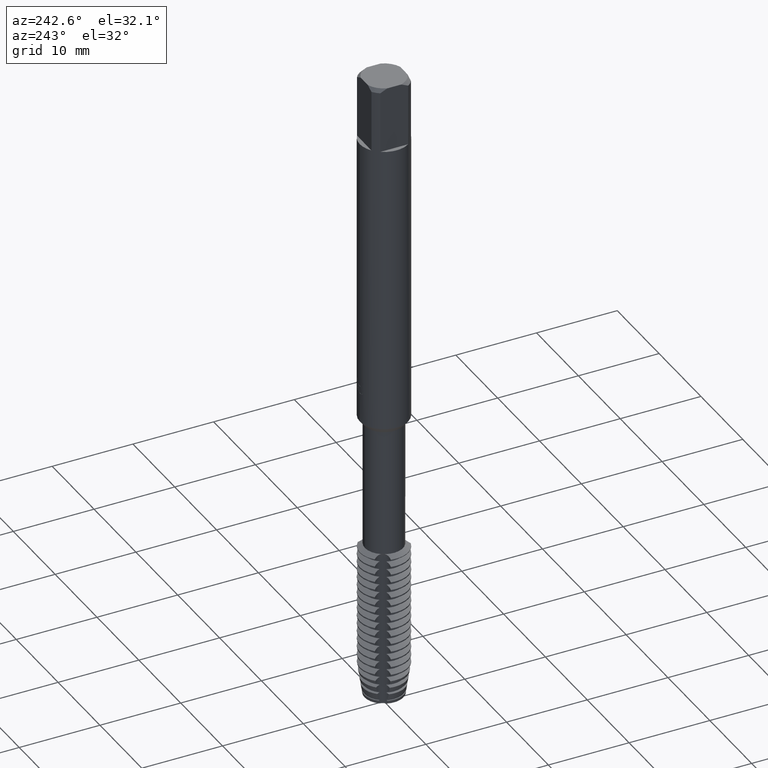
[diagram: clean part render]
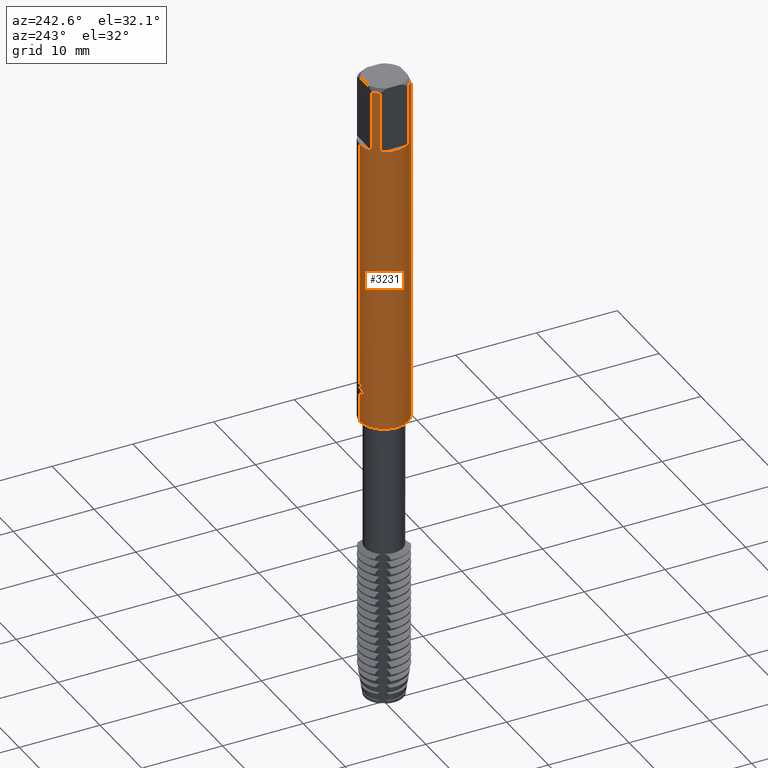
[diagram: same view with one face highlighted and labeled with its STEP entity id]
A machine part, auxiliary view. The second image highlights one B-rep face of the part: STEP entity #3231.
In plain terms, the highlighted cylindrical surface (edge-blend (fillet) strip) has radius 3 mm, axis along (-0, -0, 1).
Its self-contained STEP definition (entity closure, byte-faithful):
#2441=VERTEX_POINT('',#7209);
#2509=VERTEX_POINT('',#7287);
#2725=VERTEX_POINT('',#7520);
#2753=EDGE_CURVE('',#3367,#4453,#7549,.T.);
#2777=EDGE_CURVE('',#3161,#5751,#7575,.T.);
#2905=VERTEX_POINT('',#7716);
#2965=VERTEX_POINT('',#7782);
#2983=VERTEX_POINT('',#7801);
#3161=VERTEX_POINT('',#7998);
#3221=VERTEX_POINT('',#8066);
#3231=ADVANCED_FACE('',(#8076),#8077,.T.);
#3299=EDGE_CURVE('',#2441,#6959,#8151,.T.);
#3367=VERTEX_POINT('',#8223);
#3371=EDGE_CURVE('',#2905,#2725,#8227,.T.);
#3577=EDGE_CURVE('',#3693,#2509,#8454,.T.);
#3693=VERTEX_POINT('',#8587);
#3701=EDGE_CURVE('',#6453,#3367,#8595,.T.);
#3861=VERTEX_POINT('',#8767);
#4003=EDGE_CURVE('',#2965,#4579,#8921,.T.);
#4341=VERTEX_POINT('',#9285);
#4437=EDGE_CURVE('',#4831,#6453,#9388,.T.);
#4453=VERTEX_POINT('',#9406);
#4465=VERTEX_POINT('',#9419);
#4579=VERTEX_POINT('',#9541);
#4601=EDGE_CURVE('',#4341,#4465,#9564,.T.);
#4813=EDGE_CURVE('',#2965,#5751,#9792,.T.);
#4831=VERTEX_POINT('',#9811);
#4981=EDGE_CURVE('',#2983,#2905,#9969,.T.);
#5017=EDGE_CURVE('',#6959,#3161,#10008,.T.);
#5315=EDGE_CURVE('',#4579,#2983,#10341,.T.);
#5721=EDGE_CURVE('',#2725,#4341,#10786,.T.);
#5751=VERTEX_POINT('',#10818);
#5825=EDGE_CURVE('',#3221,#3693,#10897,.T.);
#6083=EDGE_CURVE('',#4453,#3221,#11180,.T.);
#6225=EDGE_CURVE('',#3861,#7147,#11335,.T.);
#6243=EDGE_CURVE('',#2509,#3861,#11357,.T.);
#6403=EDGE_CURVE('',#4465,#4831,#11535,.T.);
#6453=VERTEX_POINT('',#11588);
#6609=EDGE_CURVE('',#7147,#2441,#11757,.T.);
#6959=VERTEX_POINT('',#12141);
#7147=VERTEX_POINT('',#12343);
#7209=CARTESIAN_POINT('',(-3.67369332217817E-016,3.0,-39.5277346801947));
#7287=CARTESIAN_POINT('',(-0.337400394136807,2.98096644966634,-38.6902733192182));
#7520=CARTESIAN_POINT('',(-2.45,-1.73132896931808,-0.399999999999999));
#7549=CIRCLE('',#13048,3.0);
#7575=LINE('',#13098,#13099);
#7716=CARTESIAN_POINT('',(-1.73132896931808,-2.45,-0.399999999999999));
#7782=CARTESIAN_POINT('',(3.67381906146713E-016,-3.0,-44.0));
#7801=CARTESIAN_POINT('',(-1.73132896931808,-2.45,-8.0));
#7998=CARTESIAN_POINT('',(1.02911540261998E-015,2.99999999999999,-40.318615216062));
#8066=CARTESIAN_POINT('',(-1.1292194788514E-014,3.0,-39.1139612870646));
#8076=FACE_OUTER_BOUND('',#13887,.T.);
#8077=CYLINDRICAL_SURFACE('',#13888,3.0);
#8151=ELLIPSE('',#14011,3.34478529612858,3.0);
#8223=CARTESIAN_POINT('',(-1.73132896931808,2.45,-8.0));
#8227=CIRCLE('',#14118,3.0);
#8454=B_SPLINE_CURVE_WITH_KNOTS('',3,(#14524,#14525,#14526,#14527,#14528,#14529,#14530,#14531,#14532,#14533,#14534,#14535,#14536,#14537,#14538,#14539,#14540,#14541,#14542,#14543,#14544,#14545,#14546,#14547,#14548,#14549,#14550),.UNSPECIFIED.,.F.,.F.,(4,2,3,2,2,2,2,2,2,2,2,2,4),(-0.325491662881047,-0.162745831440524,0.0,0.162745831440523,0.325491662881047,0.48857928896217,0.651666915043293,0.814181075788761,0.97669523653423,1.13937860219068,1.30206196784712,1.46474533350356,1.62742869916001),.UNSPECIFIED.);
#8587=CARTESIAN_POINT('',(-0.291827366629825,2.98577239388502,-38.8859702489804));
#8595=LINE('',#14846,#14847);
#8767=CARTESIAN_POINT('',(-0.621044042345276,2.93501350890715,-38.6902733192182));
#8921=LINE('',#15451,#15452);
#9285=CARTESIAN_POINT('',(-2.45,-1.73132896931808,-8.0));
#9388=CIRCLE('',#16314,3.0);
#9406=CARTESIAN_POINT('',(-3.67381906146713E-016,3.0,-8.0));
#9419=CARTESIAN_POINT('',(-2.45,1.73132896931808,-8.0));
#9541=CARTESIAN_POINT('',(3.67381906146713E-016,-3.0,-8.0));
#9564=CIRCLE('',#16629,3.0);
#9792=CIRCLE('',#17020,3.0);
#9811=CARTESIAN_POINT('',(-2.45,1.73132896931808,-0.399999999999999));
#9969=LINE('',#17334,#17335);
#10008=B_SPLINE_CURVE_WITH_KNOTS('',3,(#17401,#17402,#17403,#17404,#17405,#17406,#17407,#17408,#17409,#17410),.UNSPECIFIED.,.F.,.F.,(4,2,2,2,4),(3.33952438176389,3.71068639626914,4.08193290438485,4.45317941250055,4.82387408804259),.UNSPECIFIED.);
#10341=CIRCLE('',#17949,3.0);
#10786=LINE('',#18767,#18768);
#10818=CARTESIAN_POINT('',(0.0,3.0,-44.0));
#10897=B_SPLINE_CURVE_WITH_KNOTS('',3,(#19007,#19008,#19009,#19010,#19011,#19012,#19013,#19014,#19015,#19016,#19017,#19018,#19019,#19020,#19021,#19022,#19023,#19024,#19025,#19026,#19027,#19028,#19029,#19030,#19031,#19032,#19033),.UNSPECIFIED.,.F.,.F.,(4,2,3,2,2,2,2,2,2,2,2,2,4),(-0.325491662881047,-0.162745831440524,0.0,0.162745831440523,0.325491662881047,0.48857928896217,0.651666915043293,0.814181075788761,0.97669523653423,1.13937860219068,1.30206196784712,1.46474533350356,1.62742869916001),.UNSPECIFIED.);
#11180=LINE('',#19476,#19477);
#11335=B_SPLINE_CURVE_WITH_KNOTS('',3,(#19727,#19728,#19729,#19730,#19731,#19732,#19733,#19734,#19735,#19736,#19737,#19738,#19739,#19740),.UNSPECIFIED.,.F.,.F.,(4,2,2,2,2,2,4),(1.87999836018882,2.14840403024698,2.41680970030514,2.6852153703633,2.95307215785743,3.22092894535156,3.49027513061082),.UNSPECIFIED.);
#11357=CIRCLE('',#19767,3.0);
#11535=LINE('',#20035,#20036);
#11588=CARTESIAN_POINT('',(-1.73132896931808,2.45,-0.399999999999999));
#11757=LINE('',#20438,#20439);
#12141=CARTESIAN_POINT('',(-0.802231651465797,2.89074806536067,-39.9232482345277));
#12343=CARTESIAN_POINT('',(3.38846304659749E-016,3.0,-39.4000480931129));
#13048=AXIS2_PLACEMENT_3D('',#22027,#22028,#22029);
#13098=CARTESIAN_POINT('',(-3.67381906146713E-016,3.0,-22.2));
#13099=VECTOR('',#22210,1.0);
#13887=EDGE_LOOP('',(#22746,#22747,#22748,#22749,#22750,#22751,#22752,#22753,#22754,#22755,#22756,#22757,#22758,#22759,#22760,#22761,#22762,#22763,#22764,#22765));
#13888=AXIS2_PLACEMENT_3D('',#22766,#22767,#22768);
#14011=AXIS2_PLACEMENT_3D('',#22842,#22843,#22844);
#14118=AXIS2_PLACEMENT_3D('',#22897,#22898,#22899);
#14524=CARTESIAN_POINT('',(0.399073662054701,2.9733382270193,-38.3881578074487));
#14525=CARTESIAN_POINT('',(0.437241118172757,2.96821549111729,-38.4263666363942));
#14526=CARTESIAN_POINT('',(0.470378499662075,2.96297848846858,-38.4747661621587));
#14527=CARTESIAN_POINT('',(0.514381160077739,2.95565719997762,-38.5809468503984));
#14528=CARTESIAN_POINT('',(0.525240588713139,2.95366252709552,-38.6387365970719));
#14529=CARTESIAN_POINT('',(0.525240588713139,2.95366252709552,-38.6929852075521));
#14530=CARTESIAN_POINT('',(0.525240588713139,2.95366252709552,-38.7472338180322));
#14531=CARTESIAN_POINT('',(0.514381160077739,2.95565719997762,-38.8050235647058));
#14532=CARTESIAN_POINT('',(0.470378499662075,2.96297848846858,-38.9112042529454));
#14533=CARTESIAN_POINT('',(0.437241118172758,2.96821549111729,-38.95960377871));
#14534=CARTESIAN_POINT('',(0.360826047619651,2.97847172156046,-39.0361016818081));
#14535=CARTESIAN_POINT('',(0.312384718269332,2.98416839722865,-39.0693131706837));
#14536=CARTESIAN_POINT('',(0.206102293488516,2.99338722515065,-39.1134202069633));
#14537=CARTESIAN_POINT('',(0.148251731896476,2.99682777449178,-39.1243099616648));
#14538=CARTESIAN_POINT('',(0.0397709987252813,3.00022545933147,-39.1243099616648));
#14539=CARTESIAN_POINT('',(-0.0179912012444218,3.00041652694693,-39.1134886213906));
#14540=CARTESIAN_POINT('',(-0.124225517538505,2.99789776999505,-39.0694963705132));
#14541=CARTESIAN_POINT('',(-0.172700489972417,2.99527068292401,-39.0363276588386));
#14542=CARTESIAN_POINT('',(-0.249281669772502,2.9898718432363,-38.9597995158294));
#14543=CARTESIAN_POINT('',(-0.282493736677514,2.98675204362553,-38.9113123678398));
#14544=CARTESIAN_POINT('',(-0.326558647658045,2.98225584656319,-38.8050214521099));
#14545=CARTESIAN_POINT('',(-0.337408919512348,2.9809654847102,-38.7472129961042));
#14546=CARTESIAN_POINT('',(-0.337408919512347,2.9809654847102,-38.6387574189999));
#14547=CARTESIAN_POINT('',(-0.326558647658045,2.98225584656319,-38.5809489629942));
#14548=CARTESIAN_POINT('',(-0.282493736677516,2.98675204362553,-38.4746580472644));
#14549=CARTESIAN_POINT('',(-0.2492816697725,2.9898718432363,-38.4261708992748));
#14550=CARTESIAN_POINT('',(-0.210971156732432,2.9925726676268,-38.387886918428));
#14846=CARTESIAN_POINT('',(-1.73132896931808,2.45,-4.2));
#14847=VECTOR('',#23334,1.0);
#15451=CARTESIAN_POINT('',(3.67381906146713E-016,-3.0,-22.2));
#15452=VECTOR('',#23672,1.0);
#16314=AXIS2_PLACEMENT_3D('',#24136,#24137,#24138);
#16629=AXIS2_PLACEMENT_3D('',#24299,#24300,#24301);
#17020=AXIS2_PLACEMENT_3D('',#24547,#24548,#24549);
#17334=CARTESIAN_POINT('',(-1.73132896931808,-2.45,-4.2));
#17335=VECTOR('',#24702,1.0);
#17401=CARTESIAN_POINT('',(-0.919321134391312,2.85566956279284,-39.7167514643836));
#17402=CARTESIAN_POINT('',(-0.869340333826626,2.87175979045446,-39.8369526818478));
#17403=CARTESIAN_POINT('',(-0.7943367658771,2.89428729416518,-39.946180348735));
#17404=CARTESIAN_POINT('',(-0.62190649826245,2.93617195165647,-40.1186756687858));
#17405=CARTESIAN_POINT('',(-0.512637169305662,2.95836427575571,-40.1937653794614));
#17406=CARTESIAN_POINT('',(-0.272101743389447,2.99009643596645,-40.2938340938058));
#17407=CARTESIAN_POINT('',(-0.140764146727553,2.99924977776393,-40.3187634001052));
#17408=CARTESIAN_POINT('',(0.106545602280532,3.0006526485303,-40.3187634001052));
#17409=CARTESIAN_POINT('',(0.237797441372153,2.9930118737714,-40.2939004779081));
#17410=CARTESIAN_POINT('',(0.358042092904169,2.97855768111158,-40.2439214764374));
#17949=AXIS2_PLACEMENT_3D('',#25129,#25130,#25131);
#18767=CARTESIAN_POINT('',(-2.45,-1.73132896931808,-4.2));
#18768=VECTOR('',#25606,1.0);
#19007=CARTESIAN_POINT('',(0.399073662054701,2.9733382270193,-38.3881578074487));
#19008=CARTESIAN_POINT('',(0.437241118172757,2.96821549111729,-38.4263666363942));
#19009=CARTESIAN_POINT('',(0.470378499662075,2.96297848846858,-38.4747661621587));
#19010=CARTESIAN_POINT('',(0.514381160077739,2.95565719997762,-38.5809468503984));
#19011=CARTESIAN_POINT('',(0.525240588713139,2.95366252709552,-38.6387365970719));
#19012=CARTESIAN_POINT('',(0.525240588713139,2.95366252709552,-38.6929852075521));
#19013=CARTESIAN_POINT('',(0.525240588713139,2.95366252709552,-38.7472338180322));
#19014=CARTESIAN_POINT('',(0.514381160077739,2.95565719997762,-38.8050235647058));
#19015=CARTESIAN_POINT('',(0.470378499662075,2.96297848846858,-38.9112042529454));
#19016=CARTESIAN_POINT('',(0.437241118172758,2.96821549111729,-38.95960377871));
#19017=CARTESIAN_POINT('',(0.360826047619651,2.97847172156046,-39.0361016818081));
#19018=CARTESIAN_POINT('',(0.312384718269332,2.98416839722865,-39.0693131706837));
#19019=CARTESIAN_POINT('',(0.206102293488516,2.99338722515065,-39.1134202069633));
#19020=CARTESIAN_POINT('',(0.148251731896476,2.99682777449178,-39.1243099616648));
#19021=CARTESIAN_POINT('',(0.0397709987252813,3.00022545933147,-39.1243099616648));
#19022=CARTESIAN_POINT('',(-0.0179912012444218,3.00041652694693,-39.1134886213906));
#19023=CARTESIAN_POINT('',(-0.124225517538505,2.99789776999505,-39.0694963705132));
#19024=CARTESIAN_POINT('',(-0.172700489972417,2.99527068292401,-39.0363276588386));
#19025=CARTESIAN_POINT('',(-0.249281669772502,2.9898718432363,-38.9597995158294));
#19026=CARTESIAN_POINT('',(-0.282493736677514,2.98675204362553,-38.9113123678398));
#19027=CARTESIAN_POINT('',(-0.326558647658045,2.98225584656319,-38.8050214521099));
#19028=CARTESIAN_POINT('',(-0.337408919512348,2.9809654847102,-38.7472129961042));
#19029=CARTESIAN_POINT('',(-0.337408919512347,2.9809654847102,-38.6387574189999));
#19030=CARTESIAN_POINT('',(-0.326558647658045,2.98225584656319,-38.5809489629942));
#19031=CARTESIAN_POINT('',(-0.282493736677516,2.98675204362553,-38.4746580472644));
#19032=CARTESIAN_POINT('',(-0.2492816697725,2.9898718432363,-38.4261708992748));
#19033=CARTESIAN_POINT('',(-0.210971156732432,2.9925726676268,-38.387886918428));
#19476=CARTESIAN_POINT('',(-3.67381906146713E-016,3.0,-22.2));
#19477=VECTOR('',#26016,1.0);
#19727=CARTESIAN_POINT('',(-0.566815594805735,2.94596674819744,-38.4236150957041));
#19728=CARTESIAN_POINT('',(-0.603122291768812,2.93898119928694,-38.5110702631868));
#19729=CARTESIAN_POINT('',(-0.621065410741118,2.93500898730838,-38.6063125597536));
#19730=CARTESIAN_POINT('',(-0.621065410741118,2.93500898730838,-38.7852496731257));
#19731=CARTESIAN_POINT('',(-0.603122291768812,2.93898119928694,-38.8804919696925));
#19732=CARTESIAN_POINT('',(-0.530508897842667,2.95295229710796,-39.055402304658));
#19733=CARTESIAN_POINT('',(-0.475852290631327,2.96270316106731,-39.1350957389974));
#19734=CARTESIAN_POINT('',(-0.349984167638816,2.98019126514534,-39.260811405771));
#19735=CARTESIAN_POINT('',(-0.270336314519269,2.98907692835774,-39.3153432148754));
#19736=CARTESIAN_POINT('',(-0.0955895793377411,2.99975419634472,-39.3877548978209));
#19737=CARTESIAN_POINT('',(-0.00047184449299921,3.00132832175784,-39.405621178052));
#19738=CARTESIAN_POINT('',(0.178517394741791,2.99602943216305,-39.405621178052));
#19739=CARTESIAN_POINT('',(0.273865411703844,2.98877153009163,-39.3875766213428));
#19740=CARTESIAN_POINT('',(0.361301135447278,2.97816411393404,-39.3512216005985));
#19767=AXIS2_PLACEMENT_3D('',#26236,#26237,#26238);
#20035=CARTESIAN_POINT('',(-2.45,1.73132896931808,-4.2));
#20036=VECTOR('',#26456,1.0);
#20438=CARTESIAN_POINT('',(-3.67381906146713E-016,3.0,-22.2));
#20439=VECTOR('',#26662,1.0);
#22027=CARTESIAN_POINT('',(0.0,0.0,-8.0));
#22028=DIRECTION('',(0.0,0.0,-1.0));
#22029=DIRECTION('',(0.0,1.0,0.0));
#22210=DIRECTION('',(0.0,0.0,-1.0));
#22746=ORIENTED_EDGE('',*,*,#6083,.T.);
#22747=ORIENTED_EDGE('',*,*,#5825,.T.);
#22748=ORIENTED_EDGE('',*,*,#3577,.T.);
#22749=ORIENTED_EDGE('',*,*,#6243,.T.);
#22750=ORIENTED_EDGE('',*,*,#6225,.T.);
#22751=ORIENTED_EDGE('',*,*,#6609,.T.);
#22752=ORIENTED_EDGE('',*,*,#3299,.T.);
#22753=ORIENTED_EDGE('',*,*,#5017,.T.);
#22754=ORIENTED_EDGE('',*,*,#2777,.T.);
#22755=ORIENTED_EDGE('',*,*,#4813,.F.);
#22756=ORIENTED_EDGE('',*,*,#4003,.T.);
#22757=ORIENTED_EDGE('',*,*,#5315,.T.);
#22758=ORIENTED_EDGE('',*,*,#4981,.T.);
#22759=ORIENTED_EDGE('',*,*,#3371,.T.);
#22760=ORIENTED_EDGE('',*,*,#5721,.T.);
#22761=ORIENTED_EDGE('',*,*,#4601,.T.);
#22762=ORIENTED_EDGE('',*,*,#6403,.T.);
#22763=ORIENTED_EDGE('',*,*,#4437,.T.);
#22764=ORIENTED_EDGE('',*,*,#3701,.T.);
#22765=ORIENTED_EDGE('',*,*,#2753,.T.);
#22766=CARTESIAN_POINT('',(0.0,0.0,-22.2));
#22767=DIRECTION('',(-0.0,-0.0,1.0));
#22768=DIRECTION('',(0.0,1.0,0.0));
#22842=CARTESIAN_POINT('',(0.0,0.0,-39.5277346801947));
#22843=DIRECTION('',(-0.442195774284071,0.0,0.896918556617774));
#22844=DIRECTION('',(0.896918556617774,-0.0,0.442195774284071));
#22897=CARTESIAN_POINT('',(0.0,0.0,-0.399999999999999));
#22898=DIRECTION('',(0.0,0.0,-1.0));
#22899=DIRECTION('',(0.0,1.0,0.0));
#23334=DIRECTION('',(0.0,0.0,-1.0));
#23672=DIRECTION('',(-0.0,-0.0,1.0));
#24136=CARTESIAN_POINT('',(0.0,0.0,-0.399999999999999));
#24137=DIRECTION('',(0.0,0.0,-1.0));
#24138=DIRECTION('',(0.0,1.0,0.0));
#24299=CARTESIAN_POINT('',(0.0,0.0,-8.0));
#24300=DIRECTION('',(0.0,0.0,-1.0));
#24301=DIRECTION('',(0.0,1.0,0.0));
#24547=CARTESIAN_POINT('',(0.0,0.0,-44.0));
#24548=DIRECTION('',(0.0,0.0,-1.0));
#24549=DIRECTION('',(0.0,1.0,0.0));
#24702=DIRECTION('',(-0.0,-0.0,1.0));
#25129=CARTESIAN_POINT('',(0.0,0.0,-8.0));
#25130=DIRECTION('',(0.0,0.0,-1.0));
#25131=DIRECTION('',(0.0,1.0,0.0));
#25606=DIRECTION('',(0.0,0.0,-1.0));
#26016=DIRECTION('',(0.0,0.0,-1.0));
#26236=CARTESIAN_POINT('',(0.0,0.0,-38.6902733192182));
#26237=DIRECTION('',(0.0,-0.0,1.0));
#26238=DIRECTION('',(0.0,1.0,0.0));
#26456=DIRECTION('',(-0.0,-0.0,1.0));
#26662=DIRECTION('',(0.0,0.0,-1.0));